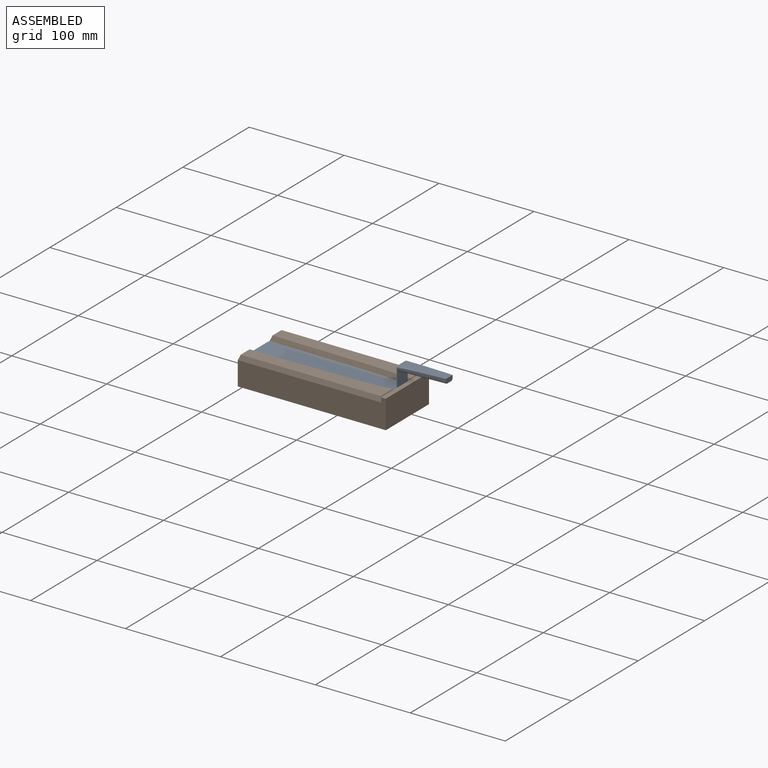
[diagram: assembled view]
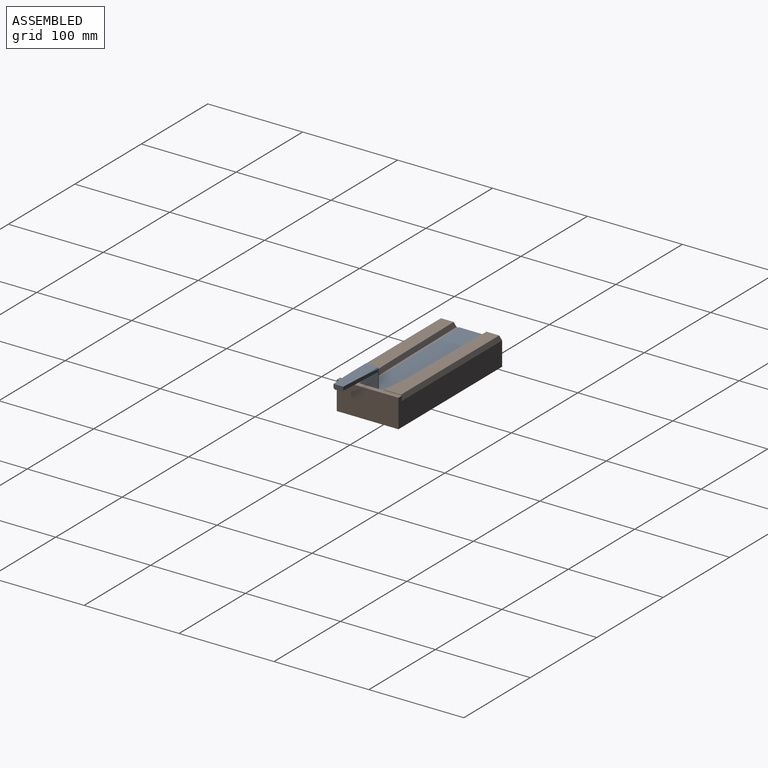
[diagram: assembled view, second angle]
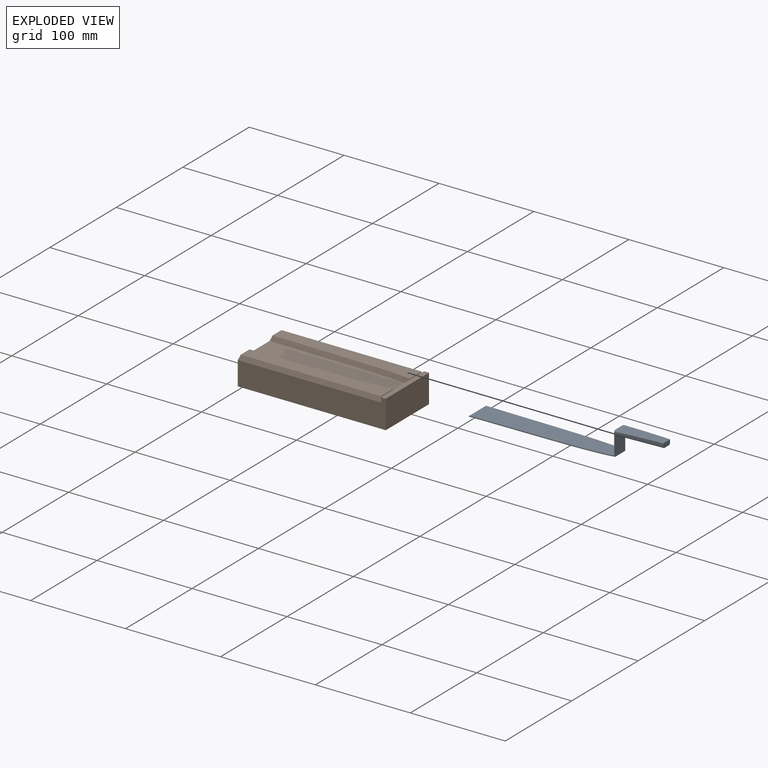
[diagram: exploded view]
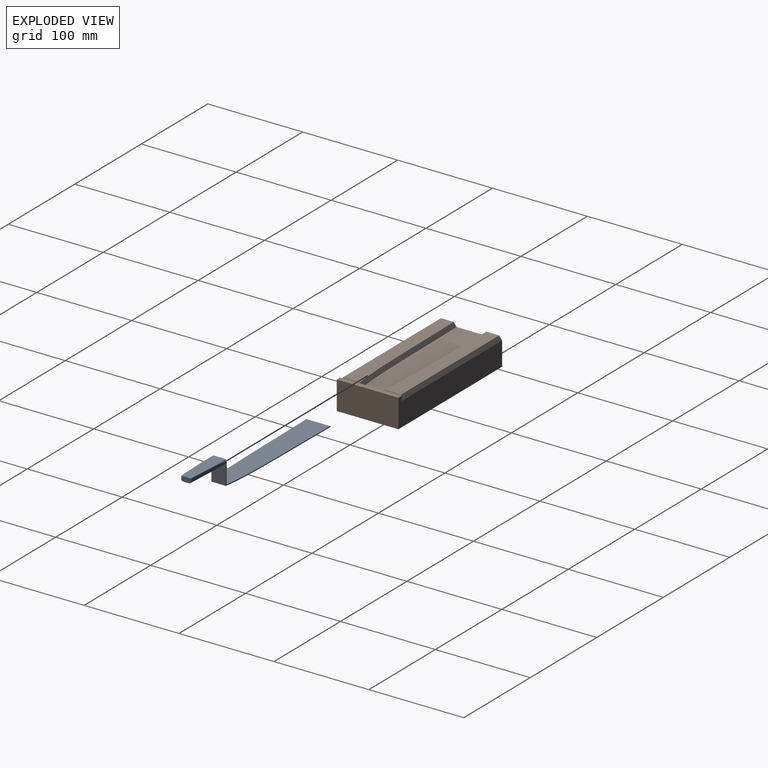
[diagram: exploded view, second angle]
ASSEMBLY  parts=2 mates=2
PART A: 18 faces, bbox 210.5x25.1x25.1 mm
  f0: extruded ~150x4.84mm, area 149.7mm2, adj f2,f3,f4,f6
  f1: extruded ~150x4.84mm, area 149.7mm2, adj f2,f3,f4,f8
  f2: plane 150x25mm, normal (0,0,1), area 3349.2mm2, adj f0,f1,f4,f5
  f3: plane 151x25mm, normal (0,0,-1), area 3389.5mm2, adj f0,f1,f4,f6,f8,f9
  f4: plane 25x1mm, normal (-0.71,0,0.71), area 35.3mm2, adj f0,f1,f2,f3
  f5: plane 24x15.32mm, normal (-1,0,0), area 366mm2, adj f2,f6,f7,f8,f16,f17
  f6: plane 23x1mm, normal (0,1,0), area 23mm2, adj f0,f3,f5,f9,f16
  f7: plane 50x11.41mm, normal (0,0,1), area 560.9mm2, adj f5,f10,f11,f12,f16,f17
  f8: plane 23x1mm, normal (0,-1,0), area 23mm2, adj f1,f3,f5,f9,f17
  f9: plane 23.51x15.4mm, normal (1,0,0), area 308.5mm2, adj f3,f6,f8,f11,f12,f13,f14,f15
  f10: plane 10.3x5.08mm, normal (1,0,0), area 49.4mm2, adj f7,f11,f12,f13,f14,f15
  f11: extruded ~49x3mm, area 131mm2, adj f7,f9,f10,f14,f16
  f12: extruded ~49x3mm, area 131mm2, adj f7,f9,f10,f15,f17
  f13: plane 49x11.22mm, normal (0,0,-1), area 432mm2, adj f9,f10,f14,f15
  f14: bspline ~68.31x5.52mm, area 154.1mm2, adj f9,f10,f11,f13
  f15: bspline ~68.31x5.52mm, area 154.1mm2, adj f9,f10,f12,f13
  f16: cylinder r=2mm len=40.37mm, axis (-1,0,0), area 47.5mm2, adj f5,f6,f7,f9,f11
  f17: cylinder r=2mm len=40.37mm, axis (1,0,0), area 47.5mm2, adj f5,f7,f8,f9,f12
PART B: 22 faces, bbox 158.3x65x31 mm
  f0: plane 17.01x5.01mm, normal (-0.94,0,0.34), area 80.8mm2, adj f1,f4,f5,f6,f16
  f1: plane 151x5mm, normal (0,0.94,0.34), area 793.8mm2, adj f0,f2,f6,f17
  f2: plane 21.86x5.02mm, normal (0.94,0,0.34), area 106.1mm2, adj f1,f3,f4,f6,f19
  f3: plane 1.78x0.71mm, normal (0,-0.94,0.34), area 0.7mm2, adj f2,f4,f7
  f4: bspline ~153.95x7.24mm, area 794mm2, adj f0,f2,f3,f5,f6,f7
  f5: plane 0.14x0.05mm, normal (0,-0.94,0.34), area 0mm2, adj f0,f4,f7
  f6: plane 147.37x17.97mm, normal (0,0,1), area 2152mm2, adj f0,f1,f2,f4
  f7: plane 151x31mm, normal (0,0,1), area 4296.5mm2, adj f3,f4,f5,f9,f10,f11,f16,f19
  f8: plane 17.01x5.01mm, normal (-0.94,0,0.34), area 80.8mm2, adj f9,f10,f13,f14,f16
  f9: plane 0.14x0.05mm, normal (0,0.94,0.34), area 0mm2, adj f7,f8,f10
  f10: bspline ~153.95x7.24mm, area 794mm2, adj f7,f8,f9,f11,f12,f14
  f11: plane 1.78x0.71mm, normal (0,0.94,0.34), area 0.7mm2, adj f7,f10,f12
  f12: plane 21.86x5.02mm, normal (0.94,0,0.34), area 106.1mm2, adj f10,f11,f13,f14,f19
  f13: plane 151x5mm, normal (0,-0.94,0.34), area 793.8mm2, adj f8,f12,f14,f15
  f14: plane 147.37x17.97mm, normal (0,0,1), area 2152mm2, adj f8,f10,f12,f13
  f15: plane 156x30mm, normal (0,-1,0), area 3925mm2, adj f13,f16,f18,f19,f20,f21
  f16: plane 65x25mm, normal (-1,0,0), area 1625mm2, adj f0,f7,f8,f15,f17,f18
  f17: plane 156x30mm, normal (0,1,0), area 3925mm2, adj f1,f16,f18,f19,f20,f21
  f18: plane 156x65mm, normal (0,0,-1), area 10140mm2, adj f15,f16,f17,f21
  f19: plane 65x5mm, normal (-1,0,0), area 325mm2, adj f2,f7,f12,f15,f17,f20
  f20: plane 65x5mm, normal (0,0,1), area 325mm2, adj f15,f17,f19,f21
  f21: plane 65x30mm, normal (1,0,0), area 1950mm2, adj f15,f17,f18,f20
PLACE A rot(axis=(0,0,1),0deg) t=(-0.38,0,-4.85)mm
PLACE B t=(-0.38,0,-4.85)mm fixed
MATE planar B.f19 <-> A.f9  axis (-1,0,0) through (150.62,-12.5,-2.35)mm
MATE parallel A.f3 <-> B.f7  axis (0,0,-1) through (71.27,-12.5,-4.85)mm
